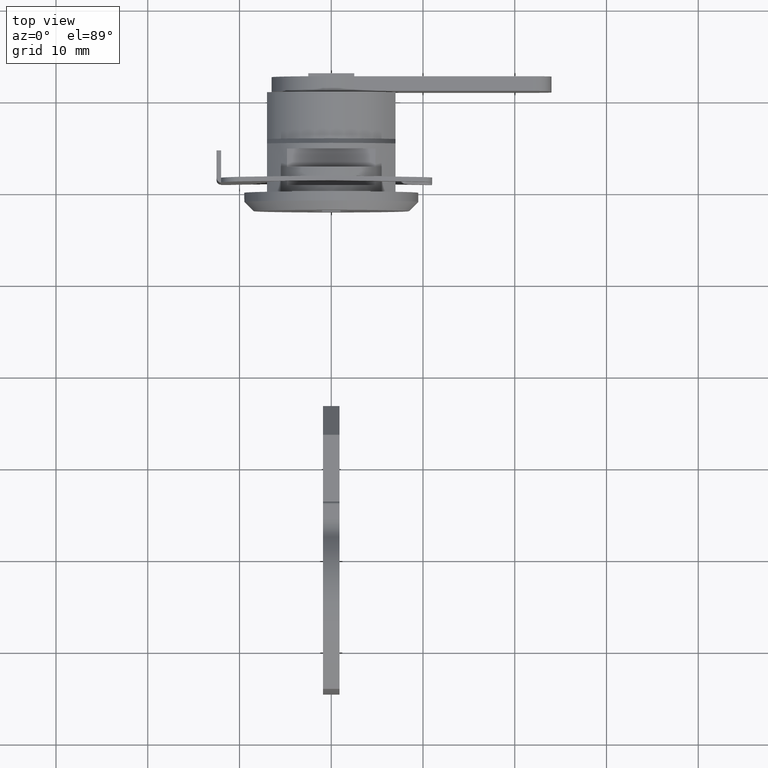
[diagram: clean part render]
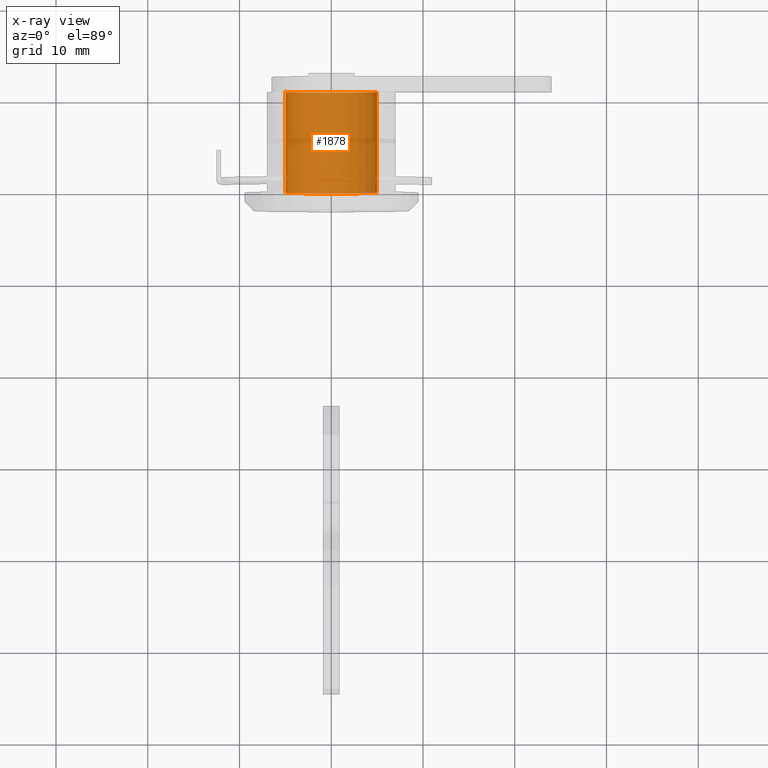
[diagram: x-ray — body ghosted, one internal face saturated and labeled with its STEP entity id]
A machine part, top view, then the same camera in x-ray: the body is ghosted and one INTERNAL B-rep face — a face not visible from any outside direction — is saturated and labeled: STEP entity #1878.
In plain terms, the highlighted face is a freeform B-spline surface patch.
Its self-contained STEP definition (entity closure, byte-faithful):
#1776=CARTESIAN_POINT('',(11.275000000000128,4.965047631818332,0.590171173283792));
#1777=CARTESIAN_POINT('',(11.275000000000130,4.981938077243028,0.448073643189888));
#1778=CARTESIAN_POINT('',(11.275000000000130,4.990673992109334,0.305242697674285));
#1779=CARTESIAN_POINT('',(11.275000000000125,5.295916689783620,-4.685431294435048));
#1780=CARTESIAN_POINT('',(11.275000000000130,0.305242697674285,-4.990673992109334));
#1781=CARTESIAN_POINT('',(11.275000000000125,-4.685431294435048,-5.295916689783620));
#1782=CARTESIAN_POINT('',(11.275000000000130,-4.990673992109334,-0.305242697674285));
#1783=CARTESIAN_POINT('',(-0.281875000000003,4.965047631818332,0.590171173283792));
#1784=CARTESIAN_POINT('',(-0.281875000000003,4.981938077243028,0.448073643189888));
#1785=CARTESIAN_POINT('',(-0.281875000000003,4.990673992109334,0.305242697674285));
#1786=CARTESIAN_POINT('',(-0.281875000000003,5.295916689783620,-4.685431294435048));
#1787=CARTESIAN_POINT('',(-0.281875000000003,0.305242697674285,-4.990673992109334));
#1788=CARTESIAN_POINT('',(-0.281875000000003,-4.685431294435048,-5.295916689783620));
#1789=CARTESIAN_POINT('',(-0.281875000000003,-4.990673992109334,-0.305242697674285));
#1797=(BOUNDED_SURFACE()B_SPLINE_SURFACE(2,1,((#1776,#1783),(#1777,#1784),(#1778,#1785),(#1779,#1786),(#1780,#1787),(#1781,#1788),(#1782,#1789)),.UNSPECIFIED.,.F.,.F.,.U.)B_SPLINE_SURFACE_WITH_KNOTS((3,2,2,3),(2,2),(0.0,0.331370849898476,8.615642097360375,16.899913344822270),(0.0,11.556875000000129),.UNSPECIFIED.)GEOMETRIC_REPRESENTATION_ITEM()RATIONAL_B_SPLINE_SURFACE(((0.977505800795127,0.977505800795127),(0.988284271247462,0.988284271247462),(1.0,1.0),(0.707106781186548,0.707106781186548),(1.0,1.0),(0.707106781186548,0.707106781186548),(1.0,1.0)))REPRESENTATION_ITEM('')SURFACE());
#1798=CARTESIAN_POINT('',(-4.259142E-016,4.965047631816158,0.590171173302079));
#1799=VERTEX_POINT('',#1798);
#1800=CARTESIAN_POINT('',(0.0,0.0,-5.0));
#1801=VERTEX_POINT('',#1800);
#1802=CARTESIAN_POINT('',(-4.259142E-016,4.965047631816158,0.590171173302079));
#1803=CARTESIAN_POINT('',(0.0,5.000000000000001,0.296120598278031));
#1804=CARTESIAN_POINT('',(0.0,5.0,-3.944305E-031));
#1805=CARTESIAN_POINT('',(0.0,5.000000000000001,-5.000000000000001));
#1806=CARTESIAN_POINT('',(0.0,0.0,-5.0));
#1814=(BOUNDED_CURVE()B_SPLINE_CURVE(2,(#1802,#1803,#1804,#1805,#1806),.UNSPECIFIED.,.F.,.U.)B_SPLINE_CURVE_WITH_KNOTS((3,2,3),(0.229562473514399,0.250000000000000,0.500000000000000),.UNSPECIFIED.)CURVE()GEOMETRIC_REPRESENTATION_ITEM()RATIONAL_B_SPLINE_CURVE((0.956026754185446,0.976055948332189,1.0,0.707106781186548,1.0))REPRESENTATION_ITEM(''));
#1815=EDGE_CURVE('',#1799,#1801,#1814,.T.);
#1816=ORIENTED_EDGE('',*,*,#1815,.F.);
#1817=CARTESIAN_POINT('',(11.000000000000121,4.965048729018163,0.590161942511297));
#1818=VERTEX_POINT('',#1817);
#1819=CARTESIAN_POINT('',(11.000000000000121,4.965048729018163,0.590161942511297));
#1820=CARTESIAN_POINT('',(-4.259142E-016,4.965047631816158,0.590171173302079));
#1821=QUASI_UNIFORM_CURVE('',1,(#1819,#1820),.UNSPECIFIED.,.F.,.U.);
#1822=EDGE_CURVE('',#1818,#1799,#1821,.T.);
#1823=ORIENTED_EDGE('',*,*,#1822,.F.);
#1824=CARTESIAN_POINT('',(11.000000000000121,0.0,-5.0));
#1825=VERTEX_POINT('',#1824);
#1826=CARTESIAN_POINT('',(11.000000000000117,4.965048729018163,0.590161942511297));
#1827=CARTESIAN_POINT('',(11.000000000000117,5.0,0.296115934081316));
#1828=CARTESIAN_POINT('',(11.000000000000121,5.0,-3.944305E-031));
#1829=CARTESIAN_POINT('',(11.000000000000119,5.000000000000001,-5.000000000000001));
#1830=CARTESIAN_POINT('',(11.000000000000121,0.0,-5.0));
#1838=(BOUNDED_CURVE()B_SPLINE_CURVE(2,(#1826,#1827,#1828,#1829,#1830),.UNSPECIFIED.,.F.,.U.)B_SPLINE_CURVE_WITH_KNOTS((3,2,3),(0.229562787718211,0.250000000000000,0.500000000000000),.UNSPECIFIED.)CURVE()GEOMETRIC_REPRESENTATION_ITEM()RATIONAL_B_SPLINE_CURVE((0.956027370038701,0.976056316444852,1.0,0.707106781186548,1.0))REPRESENTATION_ITEM(''));
#1839=EDGE_CURVE('',#1818,#1825,#1838,.T.);
#1840=ORIENTED_EDGE('',*,*,#1839,.T.);
#1841=CARTESIAN_POINT('',(11.000000000000121,-4.990673992104836,-0.305242697747832));
#1842=VERTEX_POINT('',#1841);
#1843=CARTESIAN_POINT('',(11.000000000000121,0.0,-5.0));
#1844=CARTESIAN_POINT('',(11.000000000000119,-4.703530334389573,-4.999999999999999));
#1845=CARTESIAN_POINT('',(11.000000000000117,-4.990673992104836,-0.305242697747832));
#1853=(BOUNDED_CURVE()B_SPLINE_CURVE(2,(#1843,#1844,#1845),.UNSPECIFIED.,.F.,.U.)B_SPLINE_CURVE_WITH_KNOTS((3,3),(0.500000000000000,0.739332962236882),.UNSPECIFIED.)CURVE()GEOMETRIC_REPRESENTATION_ITEM()RATIONAL_B_SPLINE_CURVE((1.0,0.719603993289124,0.976072041662301))REPRESENTATION_ITEM(''));
#1854=EDGE_CURVE('',#1825,#1842,#1853,.T.);
#1855=ORIENTED_EDGE('',*,*,#1854,.T.);
#1856=CARTESIAN_POINT('',(-4.718448E-016,-4.990673992104836,-0.305242697747832));
#1857=VERTEX_POINT('',#1856);
#1858=CARTESIAN_POINT('',(11.000000000000121,-4.990673992104836,-0.305242697747832));
#1859=CARTESIAN_POINT('',(-4.718448E-016,-4.990673992104836,-0.305242697747832));
#1860=QUASI_UNIFORM_CURVE('',1,(#1858,#1859),.UNSPECIFIED.,.F.,.U.);
#1861=EDGE_CURVE('',#1842,#1857,#1860,.T.);
#1862=ORIENTED_EDGE('',*,*,#1861,.T.);
#1863=CARTESIAN_POINT('',(0.0,0.0,-5.0));
#1864=CARTESIAN_POINT('',(0.0,-4.703530334389573,-4.999999999999999));
#1865=CARTESIAN_POINT('',(-4.718448E-016,-4.990673992104836,-0.305242697747832));
#1873=(BOUNDED_CURVE()B_SPLINE_CURVE(2,(#1863,#1864,#1865),.UNSPECIFIED.,.F.,.U.)B_SPLINE_CURVE_WITH_KNOTS((3,3),(0.500000000000000,0.739332962236882),.UNSPECIFIED.)CURVE()GEOMETRIC_REPRESENTATION_ITEM()RATIONAL_B_SPLINE_CURVE((1.0,0.719603993289124,0.976072041662301))REPRESENTATION_ITEM(''));
#1874=EDGE_CURVE('',#1801,#1857,#1873,.T.);
#1875=ORIENTED_EDGE('',*,*,#1874,.F.);
#1876=EDGE_LOOP('',(#1816,#1823,#1840,#1855,#1862,#1875));
#1877=FACE_OUTER_BOUND('',#1876,.T.);
#1878=ADVANCED_FACE('',(#1877),#1797,.T.);